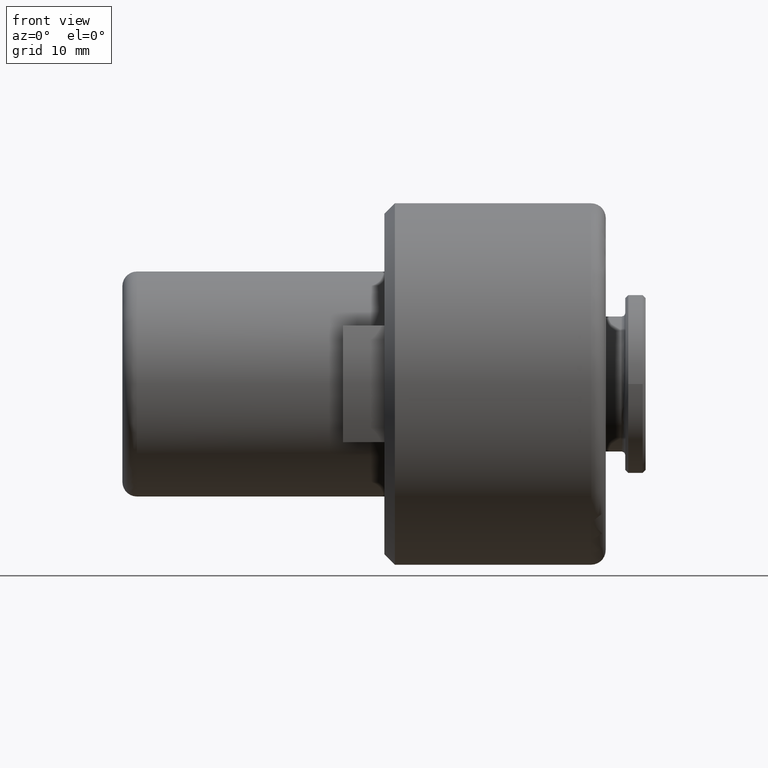
[diagram: clean part render]
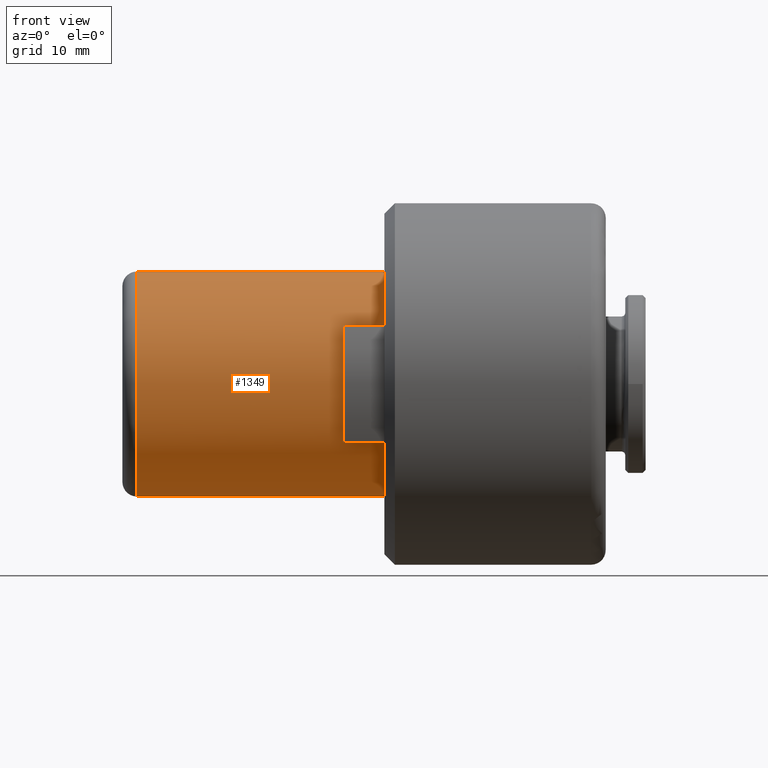
[diagram: same view with one face highlighted and labeled with its STEP entity id]
A machine part, front view. The second image highlights one B-rep face of the part: STEP entity #1349.
In plain terms, the highlighted cylindrical surface (partial cylindrical patch) has radius 15.5 mm, axis along (-1, 0, 0).
Its self-contained STEP definition (entity closure, byte-faithful):
#1 = CARTESIAN_POINT ( 'NONE',  ( 36.10000000000000100, 0.0000000000000000000, 0.0000000000000000000 ) ) ;
#24 = LINE ( 'NONE', #111, #891 ) ;
#27 = VERTEX_POINT ( 'NONE', #971 ) ;
#30 = EDGE_LOOP ( 'NONE', ( #162, #949, #926, #940, #832, #896, #979, #765 ) ) ;
#45 = AXIS2_PLACEMENT_3D ( 'NONE', #1031, #349, #1136 ) ;
#73 = EDGE_CURVE ( 'NONE', #27, #671, #134, .T. ) ;
#96 = CARTESIAN_POINT ( 'NONE',  ( 30.39999999995988100, -13.24565966825851900, 8.049999997060226100 ) ) ;
#98 = DIRECTION ( 'NONE',  ( 1.000000000000000000, -0.0000000000000000000, -0.0000000000000000000 ) ) ;
#111 = CARTESIAN_POINT ( 'NONE',  ( 36.10000000000000100, 0.0000000000000000000, 15.50000000000000000 ) ) ;
#117 = CARTESIAN_POINT ( 'NONE',  ( 22.94394856800000000, -13.24565967004515500, 8.049999994120451400 ) ) ;
#134 = LINE ( 'NONE', #374, #1298 ) ;
#136 = CARTESIAN_POINT ( 'NONE',  ( 36.10000000000000100, -13.24565966357664100, -8.050000004763893100 ) ) ;
#140 = CARTESIAN_POINT ( 'NONE',  ( 2.000000000000001800, 1.898202538678397600E-015, -15.50000000000000000 ) ) ;
#151 = VERTEX_POINT ( 'NONE', #1172 ) ;
#162 = ORIENTED_EDGE ( 'NONE', *, *, #335, .F. ) ;
#165 = DIRECTION ( 'NONE',  ( -1.000000000000000000, 0.0000000000000000000, 0.0000000000000000000 ) ) ;
#175 = CARTESIAN_POINT ( 'NONE',  ( 36.10000000000000100, -13.24565966667339200, 8.049999999668429500 ) ) ;
#179 = AXIS2_PLACEMENT_3D ( 'NONE', #888, #1211, #196 ) ;
#196 = DIRECTION ( 'NONE',  ( 0.0000000000000000000, 0.0000000000000000000, 1.000000000000000000 ) ) ;
#212 = EDGE_CURVE ( 'NONE', #671, #611, #598, .T. ) ;
#215 = FACE_OUTER_BOUND ( 'NONE', #30, .T. ) ;
#335 = EDGE_CURVE ( 'NONE', #611, #416, #1394, .T. ) ;
#349 = DIRECTION ( 'NONE',  ( 1.000000000000000000, -0.0000000000000000000, -0.0000000000000000000 ) ) ;
#374 = CARTESIAN_POINT ( 'NONE',  ( 22.94394856799999600, -13.24565966385164900, -8.050000004311389300 ) ) ;
#388 = AXIS2_PLACEMENT_3D ( 'NONE', #1228, #554, #1342 ) ;
#398 = VERTEX_POINT ( 'NONE', #175 ) ;
#416 = VERTEX_POINT ( 'NONE', #140 ) ;
#481 = CYLINDRICAL_SURFACE ( 'NONE', #1360, 15.50000000000000000 ) ;
#554 = DIRECTION ( 'NONE',  ( 1.000000000000000000, -0.0000000000000000000, 0.0000000000000000000 ) ) ;
#598 = CIRCLE ( 'NONE', #179, 15.50000000000000000 ) ;
#611 = VERTEX_POINT ( 'NONE', #767 ) ;
#668 = CARTESIAN_POINT ( 'NONE',  ( 36.10000000000000100, 0.0000000000000000000, 0.0000000000000000000 ) ) ;
#671 = VERTEX_POINT ( 'NONE', #136 ) ;
#679 = DIRECTION ( 'NONE',  ( -1.000000000000000000, 0.0000000000000000000, 0.0000000000000000000 ) ) ;
#719 = AXIS2_PLACEMENT_3D ( 'NONE', #1, #98, #775 ) ;
#765 = ORIENTED_EDGE ( 'NONE', *, *, #1162, .T. ) ;
#767 = CARTESIAN_POINT ( 'NONE',  ( 36.10000000000000100, 1.898202538678397600E-015, -15.50000000000000000 ) ) ;
#775 = DIRECTION ( 'NONE',  ( 0.0000000000000000000, 0.0000000000000000000, 1.000000000000000000 ) ) ;
#776 = DIRECTION ( 'NONE',  ( -1.000000000000000000, 0.0000000000000000000, 0.0000000000000000000 ) ) ;
#802 = DIRECTION ( 'NONE',  ( -1.000000000000000000, 0.0000000000000000000, 0.0000000000000000000 ) ) ;
#808 = CARTESIAN_POINT ( 'NONE',  ( 2.000000000000001800, 0.0000000000000000000, 15.50000000000000000 ) ) ;
#823 = EDGE_CURVE ( 'NONE', #151, #398, #845, .T. ) ;
#832 = ORIENTED_EDGE ( 'NONE', *, *, #1266, .F. ) ;
#845 = CIRCLE ( 'NONE', #719, 15.50000000000000000 ) ;
#888 = CARTESIAN_POINT ( 'NONE',  ( 36.10000000000000100, 0.0000000000000000000, 0.0000000000000000000 ) ) ;
#891 = VECTOR ( 'NONE', #679, 1000.000000000000000 ) ;
#896 = ORIENTED_EDGE ( 'NONE', *, *, #823, .F. ) ;
#924 = LINE ( 'NONE', #117, #1151 ) ;
#926 = ORIENTED_EDGE ( 'NONE', *, *, #73, .F. ) ;
#937 = EDGE_CURVE ( 'NONE', #1344, #27, #1075, .T. ) ;
#940 = ORIENTED_EDGE ( 'NONE', *, *, #937, .F. ) ;
#949 = ORIENTED_EDGE ( 'NONE', *, *, #212, .F. ) ;
#956 = CARTESIAN_POINT ( 'NONE',  ( 36.10000000000000100, 1.898202538678397600E-015, -15.50000000000000000 ) ) ;
#963 = CIRCLE ( 'NONE', #388, 15.50000000000000000 ) ;
#971 = CARTESIAN_POINT ( 'NONE',  ( 30.39999999995988100, -13.24565966516176400, -8.050000002155693200 ) ) ;
#979 = ORIENTED_EDGE ( 'NONE', *, *, #1239, .T. ) ;
#991 = DIRECTION ( 'NONE',  ( 1.000000000000000000, -0.0000000000000000000, -0.0000000000000000000 ) ) ;
#1001 = VERTEX_POINT ( 'NONE', #808 ) ;
#1031 = CARTESIAN_POINT ( 'NONE',  ( 30.39999999995988100, 0.0000000000000000000, 0.0000000000000000000 ) ) ;
#1075 = CIRCLE ( 'NONE', #45, 15.50000000000000000 ) ;
#1093 = VECTOR ( 'NONE', #165, 1000.000000000000000 ) ;
#1136 = DIRECTION ( 'NONE',  ( 0.0000000000000000000, 0.0000000000000000000, 1.000000000000000000 ) ) ;
#1151 = VECTOR ( 'NONE', #802, 1000.000000000000000 ) ;
#1162 = EDGE_CURVE ( 'NONE', #1001, #416, #963, .T. ) ;
#1172 = CARTESIAN_POINT ( 'NONE',  ( 36.10000000000000100, 0.0000000000000000000, 15.50000000000000000 ) ) ;
#1211 = DIRECTION ( 'NONE',  ( 1.000000000000000000, -0.0000000000000000000, -0.0000000000000000000 ) ) ;
#1228 = CARTESIAN_POINT ( 'NONE',  ( 2.000000000000001800, 0.0000000000000000000, 0.0000000000000000000 ) ) ;
#1239 = EDGE_CURVE ( 'NONE', #151, #1001, #24, .T. ) ;
#1266 = EDGE_CURVE ( 'NONE', #398, #1344, #924, .T. ) ;
#1298 = VECTOR ( 'NONE', #991, 1000.000000000000000 ) ;
#1338 = DIRECTION ( 'NONE',  ( 0.0000000000000000000, 0.0000000000000000000, 1.000000000000000000 ) ) ;
#1342 = DIRECTION ( 'NONE',  ( 0.0000000000000000000, 0.0000000000000000000, -1.000000000000000000 ) ) ;
#1344 = VERTEX_POINT ( 'NONE', #96 ) ;
#1349 = ADVANCED_FACE ( 'NONE', ( #215 ), #481, .T. ) ;
#1360 = AXIS2_PLACEMENT_3D ( 'NONE', #668, #776, #1338 ) ;
#1394 = LINE ( 'NONE', #956, #1093 ) ;